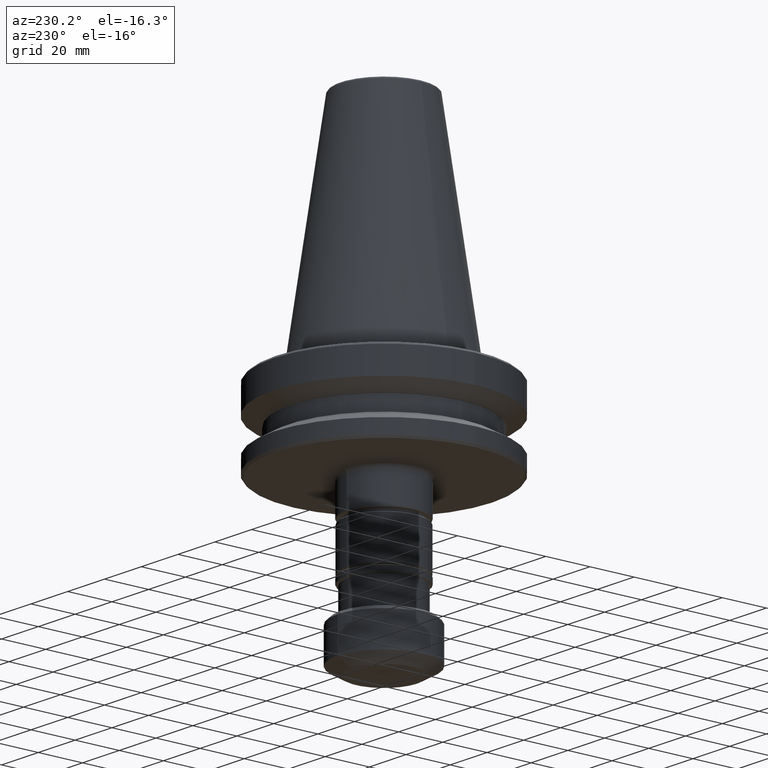
[diagram: clean part render]
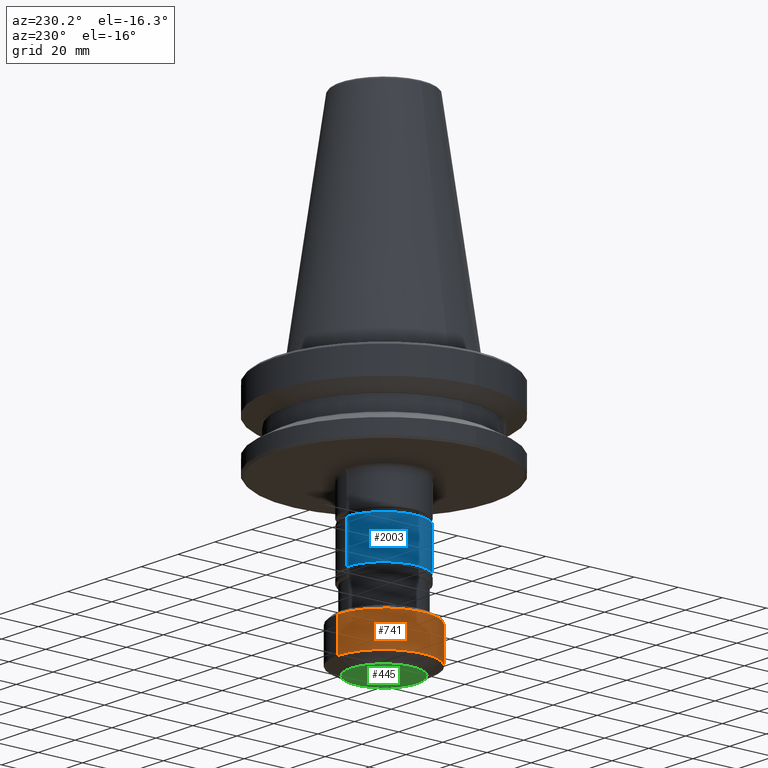
[diagram: same view with three faces highlighted in distinct colors, each labeled with its STEP entity id]
A machine part, auxiliary view with three faces highlighted in distinct colors.
Their STEP definitions:

[orange] entity #741 — the highlighted cylindrical surface (partial cylindrical patch) has radius 21 mm, axis along (-0, 0, 1).
#37 = CARTESIAN_POINT ( 'NONE',  ( 0.0000000000000000000, -1.849412940283672600E-013, -106.5358983848608600 ) ) ;
#63 = DIRECTION ( 'NONE',  ( -0.0000000000000000000, 2.698458740408409400E-015, 1.000000000000000000 ) ) ;
#68 = EDGE_CURVE ( 'NONE', #1940, #541, #1442, .T. ) ;
#97 = DIRECTION ( 'NONE',  ( -0.0000000000000000000, 2.698458740408409400E-015, 1.000000000000000000 ) ) ;
#176 = ORIENTED_EDGE ( 'NONE', *, *, #1272, .F. ) ;
#332 = CARTESIAN_POINT ( 'NONE',  ( 0.0000000000000000000, -21.00000000000029500, -91.49999999999988600 ) ) ;
#376 = CIRCLE ( 'NONE', #1427, 21.00000000000014900 ) ;
#411 = LINE ( 'NONE', #716, #458 ) ;
#458 = VECTOR ( 'NONE', #63, 1000.000000000000000 ) ;
#506 = ORIENTED_EDGE ( 'NONE', *, *, #1242, .F. ) ;
#541 = VERTEX_POINT ( 'NONE', #878 ) ;
#676 = VECTOR ( 'NONE', #1523, 1000.000000000000000 ) ;
#716 = CARTESIAN_POINT ( 'NONE',  ( 2.571758278209462600E-015, 21.00000000000017100, -38.00000000000120100 ) ) ;
#732 = CARTESIAN_POINT ( 'NONE',  ( 0.0000000000000000000, -1.443675426118466700E-013, -91.49999999999994300 ) ) ;
#741 = ADVANCED_FACE ( 'NONE', ( #869 ), #877, .T. ) ;
#831 = LINE ( 'NONE', #1440, #676 ) ;
#865 = ORIENTED_EDGE ( 'NONE', *, *, #68, .T. ) ;
#869 = FACE_OUTER_BOUND ( 'NONE', #1798, .T. ) ;
#877 = CYLINDRICAL_SURFACE ( 'NONE', #1402, 21.00000000000017100 ) ;
#878 = CARTESIAN_POINT ( 'NONE',  ( 0.0000000000000000000, -21.00000000000037700, -106.5358983848608000 ) ) ;
#917 = CARTESIAN_POINT ( 'NONE',  ( 2.571758278209464500E-015, 21.00000000000000000, -106.5358983848609100 ) ) ;
#929 = EDGE_CURVE ( 'NONE', #541, #1708, #831, .T. ) ;
#1212 = DIRECTION ( 'NONE',  ( -0.0000000000000000000, 2.698458740408409400E-015, 1.000000000000000000 ) ) ;
#1237 = AXIS2_PLACEMENT_3D ( 'NONE', #37, #1865, #1318 ) ;
#1242 = EDGE_CURVE ( 'NONE', #1917, #1708, #376, .T. ) ;
#1272 = EDGE_CURVE ( 'NONE', #1940, #1917, #411, .T. ) ;
#1318 = DIRECTION ( 'NONE',  ( 0.0000000000000000000, -1.000000000000000000, 2.643388153869396700E-015 ) ) ;
#1402 = AXIS2_PLACEMENT_3D ( 'NONE', #1493, #1212, #1741 ) ;
#1427 = AXIS2_PLACEMENT_3D ( 'NONE', #732, #97, #1975 ) ;
#1440 = CARTESIAN_POINT ( 'NONE',  ( 0.0000000000000000000, -21.00000000000017100, -38.00000000000108700 ) ) ;
#1442 = CIRCLE ( 'NONE', #1237, 21.00000000000018800 ) ;
#1493 = CARTESIAN_POINT ( 'NONE',  ( 0.0000000000000000000, 0.0000000000000000000, -38.00000000000114400 ) ) ;
#1523 = DIRECTION ( 'NONE',  ( -0.0000000000000000000, 2.698458740408409400E-015, 1.000000000000000000 ) ) ;
#1708 = VERTEX_POINT ( 'NONE', #332 ) ;
#1741 = DIRECTION ( 'NONE',  ( 0.0000000000000000000, -1.000000000000000000, 2.643388153869398700E-015 ) ) ;
#1798 = EDGE_LOOP ( 'NONE', ( #176, #865, #2018, #506 ) ) ;
#1865 = DIRECTION ( 'NONE',  ( -0.0000000000000000000, 2.698458740408409400E-015, 1.000000000000000000 ) ) ;
#1917 = VERTEX_POINT ( 'NONE', #2035 ) ;
#1940 = VERTEX_POINT ( 'NONE', #917 ) ;
#1975 = DIRECTION ( 'NONE',  ( 0.0000000000000000000, -1.000000000000000000, 2.643388153869401500E-015 ) ) ;
#2018 = ORIENTED_EDGE ( 'NONE', *, *, #929, .T. ) ;
#2035 = CARTESIAN_POINT ( 'NONE',  ( 2.571758278209463000E-015, 21.00000000000000000, -91.50000000000000000 ) ) ;

[blue] entity #2003 — the highlighted cylindrical surface (partial cylindrical patch) has radius 16.9 mm, axis along (-0, 0, 1).
#227 = CARTESIAN_POINT ( 'NONE',  ( 2.069653090558671900E-015, 16.89999999999710300, -38.00000000000119400 ) ) ;
#241 = DIRECTION ( 'NONE',  ( -0.0000000000000000000, 2.698458740408409400E-015, 1.000000000000000000 ) ) ;
#243 = EDGE_CURVE ( 'NONE', #1576, #1501, #1347, .T. ) ;
#311 = CARTESIAN_POINT ( 'NONE',  ( 0.0000000000000000000, -16.89999999999710300, -38.00000000000109400 ) ) ;
#318 = AXIS2_PLACEMENT_3D ( 'NONE', #1392, #464, #1542 ) ;
#432 = CARTESIAN_POINT ( 'NONE',  ( 2.069653090558673900E-015, 16.89999999999702900, -55.29999999999480300 ) ) ;
#464 = DIRECTION ( 'NONE',  ( -0.0000000000000000000, 2.698458740408409400E-015, 1.000000000000000000 ) ) ;
#499 = EDGE_CURVE ( 'NONE', #1501, #1394, #1122, .T. ) ;
#555 = CYLINDRICAL_SURFACE ( 'NONE', #318, 16.89999999999710300 ) ;
#631 = ORIENTED_EDGE ( 'NONE', *, *, #499, .T. ) ;
#656 = DIRECTION ( 'NONE',  ( -0.0000000000000000000, 2.698458740408409400E-015, 1.000000000000000000 ) ) ;
#668 = VECTOR ( 'NONE', #1015, 1000.000000000000000 ) ;
#673 = LINE ( 'NONE', #227, #668 ) ;
#677 = AXIS2_PLACEMENT_3D ( 'NONE', #1060, #656, #1554 ) ;
#932 = AXIS2_PLACEMENT_3D ( 'NONE', #1093, #1620, #1820 ) ;
#993 = EDGE_CURVE ( 'NONE', #1576, #1276, #673, .T. ) ;
#1015 = DIRECTION ( 'NONE',  ( -0.0000000000000000000, 2.698458740408409400E-015, 1.000000000000000000 ) ) ;
#1060 = CARTESIAN_POINT ( 'NONE',  ( 0.0000000000000000000, -9.579528528448065100E-014, -73.49999999999451500 ) ) ;
#1093 = CARTESIAN_POINT ( 'NONE',  ( 0.0000000000000000000, -4.668333620904823600E-014, -55.29999999999475300 ) ) ;
#1118 = CARTESIAN_POINT ( 'NONE',  ( 2.069653090558675100E-015, 16.89999999999702900, -73.49999999999455700 ) ) ;
#1121 = VECTOR ( 'NONE', #241, 1000.000000000000000 ) ;
#1122 = LINE ( 'NONE', #311, #1121 ) ;
#1276 = VERTEX_POINT ( 'NONE', #432 ) ;
#1347 = CIRCLE ( 'NONE', #677, 16.89999999999712800 ) ;
#1392 = CARTESIAN_POINT ( 'NONE',  ( 0.0000000000000000000, 0.0000000000000000000, -38.00000000000114400 ) ) ;
#1394 = VERTEX_POINT ( 'NONE', #1970 ) ;
#1501 = VERTEX_POINT ( 'NONE', #1791 ) ;
#1542 = DIRECTION ( 'NONE',  ( 0.0000000000000000000, -1.000000000000000000, 2.874098066707628500E-015 ) ) ;
#1554 = DIRECTION ( 'NONE',  ( 0.0000000000000000000, -1.000000000000000000, 2.463512628606535200E-015 ) ) ;
#1576 = VERTEX_POINT ( 'NONE', #1118 ) ;
#1595 = ORIENTED_EDGE ( 'NONE', *, *, #993, .F. ) ;
#1620 = DIRECTION ( 'NONE',  ( -0.0000000000000000000, 2.698458740408409400E-015, 1.000000000000000000 ) ) ;
#1746 = EDGE_CURVE ( 'NONE', #1276, #1394, #1797, .T. ) ;
#1791 = CARTESIAN_POINT ( 'NONE',  ( 0.0000000000000000000, -16.89999999999723100, -73.49999999999447200 ) ) ;
#1797 = CIRCLE ( 'NONE', #932, 16.89999999999707500 ) ;
#1801 = FACE_OUTER_BOUND ( 'NONE', #1931, .T. ) ;
#1814 = ORIENTED_EDGE ( 'NONE', *, *, #1746, .F. ) ;
#1820 = DIRECTION ( 'NONE',  ( 0.0000000000000000000, -1.000000000000000000, 2.874098066707633600E-015 ) ) ;
#1931 = EDGE_LOOP ( 'NONE', ( #1595, #2009, #631, #1814 ) ) ;
#1970 = CARTESIAN_POINT ( 'NONE',  ( 0.0000000000000000000, -16.89999999999711700, -55.29999999999471100 ) ) ;
#2003 = ADVANCED_FACE ( 'NONE', ( #1801 ), #555, .T. ) ;
#2009 = ORIENTED_EDGE ( 'NONE', *, *, #243, .T. ) ;

[green] entity #445 — the highlighted planar face has unit normal (0, -0, -1).
#101 = CARTESIAN_POINT ( 'NONE',  ( 0.0000000000000000000, 1.716395899510961500E-029, -110.0000000000000000 ) ) ;
#131 = VERTEX_POINT ( 'NONE', #1704 ) ;
#255 = AXIS2_PLACEMENT_3D ( 'NONE', #880, #1468, #651 ) ;
#331 = PLANE ( 'NONE',  #737 ) ;
#398 = ORIENTED_EDGE ( 'NONE', *, *, #1852, .F. ) ;
#445 = ADVANCED_FACE ( 'NONE', ( #1164 ), #331, .T. ) ;
#613 = CIRCLE ( 'NONE', #255, 14.99999999999784900 ) ;
#651 = DIRECTION ( 'NONE',  ( 0.0000000000000000000, -1.000000000000000000, 2.775557561563289300E-015 ) ) ;
#679 = AXIS2_PLACEMENT_3D ( 'NONE', #1210, #1753, #705 ) ;
#705 = DIRECTION ( 'NONE',  ( 0.0000000000000000000, -1.000000000000000000, 2.775557561563289300E-015 ) ) ;
#737 = AXIS2_PLACEMENT_3D ( 'NONE', #101, #920, #1858 ) ;
#806 = CARTESIAN_POINT ( 'NONE',  ( 0.0000000000000000000, -14.99999999999804200, -109.9999999999999300 ) ) ;
#880 = CARTESIAN_POINT ( 'NONE',  ( 0.0000000000000000000, -1.942890293094023200E-013, -109.9999999999999700 ) ) ;
#900 = CIRCLE ( 'NONE', #679, 14.99999999999784900 ) ;
#920 = DIRECTION ( 'NONE',  ( 0.0000000000000000000, -2.698458740408409400E-015, -1.000000000000000000 ) ) ;
#980 = ORIENTED_EDGE ( 'NONE', *, *, #1849, .F. ) ;
#1089 = EDGE_LOOP ( 'NONE', ( #980, #398 ) ) ;
#1164 = FACE_OUTER_BOUND ( 'NONE', #1089, .T. ) ;
#1210 = CARTESIAN_POINT ( 'NONE',  ( 0.0000000000000000000, -1.942890293094023200E-013, -109.9999999999999700 ) ) ;
#1468 = DIRECTION ( 'NONE',  ( -0.0000000000000000000, 2.698458740408409400E-015, 1.000000000000000000 ) ) ;
#1704 = CARTESIAN_POINT ( 'NONE',  ( 2.204364238465115500E-015, 14.99999999999765300, -110.0000000000000100 ) ) ;
#1753 = DIRECTION ( 'NONE',  ( -0.0000000000000000000, 2.698458740408409400E-015, 1.000000000000000000 ) ) ;
#1849 = EDGE_CURVE ( 'NONE', #1875, #131, #613, .T. ) ;
#1852 = EDGE_CURVE ( 'NONE', #131, #1875, #900, .T. ) ;
#1858 = DIRECTION ( 'NONE',  ( 0.0000000000000000000, 1.000000000000000000, -2.698458740408409400E-015 ) ) ;
#1875 = VERTEX_POINT ( 'NONE', #806 ) ;